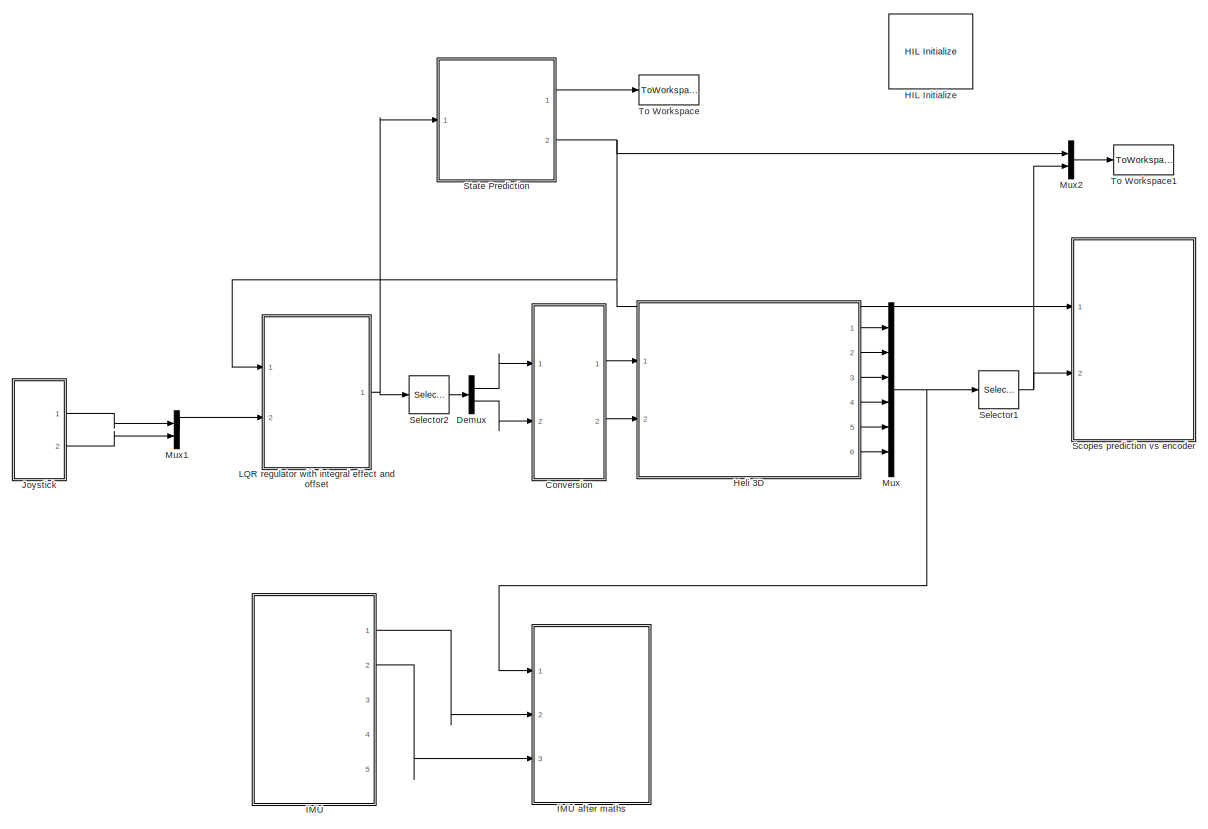
[diagram: root canvas - part 1/3, center side, full height]
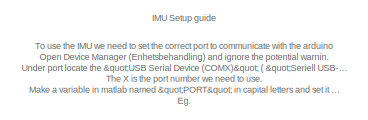
[diagram: root canvas - part 2/3, bottom left region]
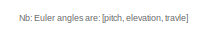
[diagram: root canvas - part 3/3, bottom right region]
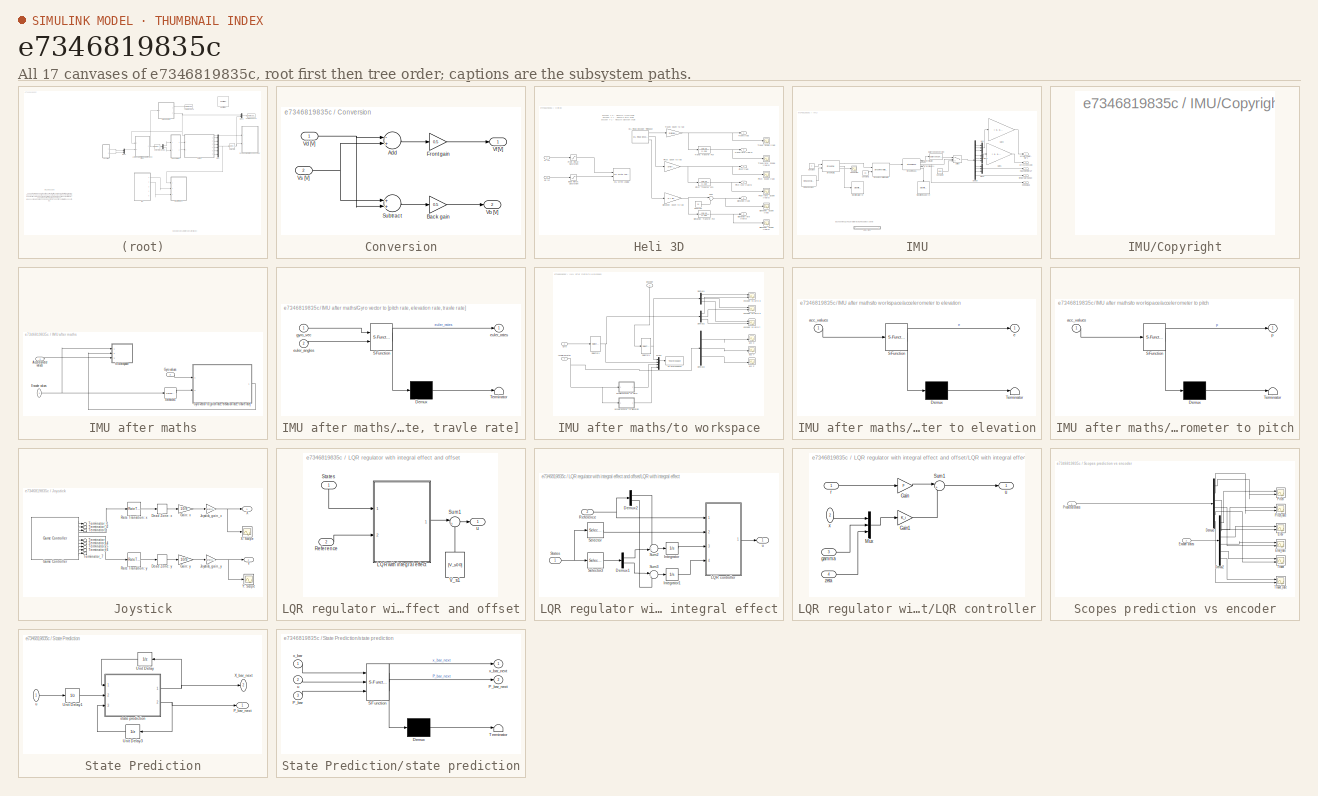
[diagram: thumbnail index - all 17 canvases of the model, root first then tree order]
MODEL slx_e7346819835c
KIND model
CONFIG AbsTol = auto
CONFIG EnableMultiTasking = on
CONFIG FixedStep = 0.002
CONFIG MaxStep = auto
CONFIG MinStep = auto
CONFIG PostLoadFcn = qc_set_target_type(getConfigSet(bdroot, 'QUARC Default Target Configuration'));
CONFIG RelTol = 1e-3
CONFIG SampleTimeConstraint = Unconstrained
CONFIG Solver = ode1
CONFIG SolverName = ode1
CONFIG StartTime = 0.0
CONFIG StopTime = inf
BLOCK [SubSystem] Conversion
  Ports = [2, 2]
  RequestExecContextInheritance = off
  Variant = off
BLOCK [Sum] Conversion/Add
  InputSameDT = off
  Inputs = -+
  OutDataTypeStr = Inherit: Inherit via internal rule
  Ports = [2, 1]
  SaturateOnIntegerOverflow = off
BLOCK [Gain] Conversion/Back gain
  Gain = 0.5
  OutDataTypeStr = Inherit: Inherit via internal rule
  ParamDataTypeStr = Inherit: Inherit via internal rule
  SaturateOnIntegerOverflow = off
BLOCK [Gain] Conversion/Front gain
  Gain = 0.5
  OutDataTypeStr = Inherit: Inherit via internal rule
  ParamDataTypeStr = Inherit: Inherit via internal rule
  SaturateOnIntegerOverflow = off
BLOCK [Sum] Conversion/Subtract
  InputSameDT = off
  OutDataTypeStr = Inherit: Inherit via internal rule
  Ports = [2, 1]
  SaturateOnIntegerOverflow = off
BLOCK [Outport] Conversion/Vb [V]
  IconDisplay = Port number
  Port = 2
BLOCK [Inport] Conversion/Vd [V]
  IconDisplay = Port number
BLOCK [Outport] Conversion/Vf [V]
  IconDisplay = Port number
BLOCK [Inport] Conversion/Vs [V]
  IconDisplay = Port number
  Port = 2
BLOCK [Demux] Demux
  DisplayOption = bar
  Outputs = 2
  Ports = [1, 2]
BLOCK [Reference] HIL Initialize  REF=quarc_library/Data Acquisition/Generic/Configuration/HIL Initialize
  AttributesFormatString = %<object_name> (%<board_type>-%<board_number>)
  Ports = []
  Priority = -99
  SourceBlock = quarc_library/Data Acquisition/Generic/Configuration/HIL Initialize
  SourceType = HIL Initialize
  UserDataPersistent = on
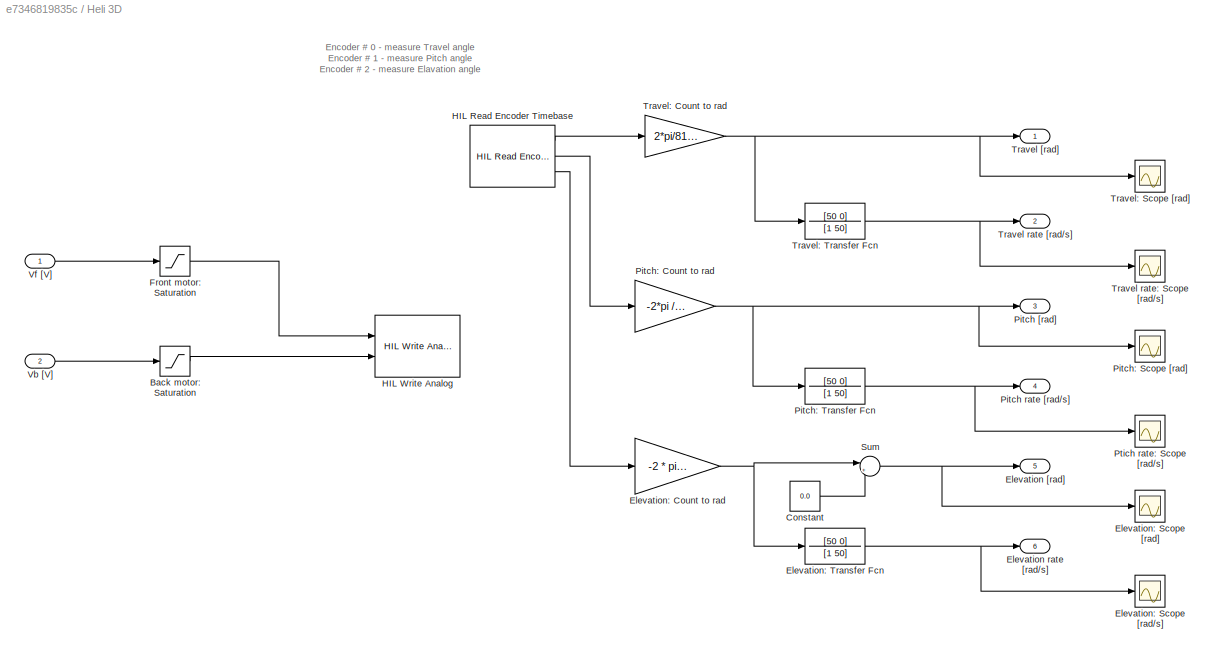
BLOCK [SubSystem] Heli 3D
  Ports = [2, 6]
  RequestExecContextInheritance = off
  Variant = off
BLOCK [Saturate] Heli 3D/Back motor: Saturation
  InputPortMap = u0
  LowerLimit = -5
  Ports = [1, 1]
  UpperLimit = 5
BLOCK [Constant] Heli 3D/Constant
  Value = 0.0
BLOCK [Outport] Heli 3D/Elevation [rad]
  IconDisplay = Port number
  Port = 5
BLOCK [Outport] Heli 3D/Elevation rate [rad//s]
  IconDisplay = Port number
  Port = 6
BLOCK [Gain] Heli 3D/Elevation: Count to rad
  Gain = -2 * pi /4096
  OutDataTypeStr = Inherit: Inherit via internal rule
  ParamDataTypeStr = Inherit: Inherit via internal rule
  SaturateOnIntegerOverflow = off
BLOCK [Scope] Heli 3D/Elevation: Scope [rad//s]
  NumInputPorts = 1
  Ports = [1]
  ScopeSpecificationString = Simulink.scopes.TimeScopeBlockCfg('CurrentConfiguration', extmgr.ConfigurationSet(extmgr.Configuration('Core','General UI',true),extmgr.Configuration('Core','Source UI',true),extmgr.Configuration('Sources','WiredSimulink',true,'DataLoggingVariableName','ScopeData13','DataLoggingSaveFormat','StructureWithTime','DataLoggingLimitDataPoints',true,'DataLoggingDecimation','1','DataLoggingDecimateData',t...<+1740ch>
BLOCK [Scope] Heli 3D/Elevation: Scope [rad]
  NumInputPorts = 1
  Ports = [1]
  ScopeSpecificationString = Simulink.scopes.TimeScopeBlockCfg('CurrentConfiguration', extmgr.ConfigurationSet(extmgr.Configuration('Core','General UI',true),extmgr.Configuration('Core','Source UI',true),extmgr.Configuration('Sources','WiredSimulink',true,'DataLoggingVariableName','ScopeData12','DataLoggingSaveFormat','StructureWithTime','DataLoggingLimitDataPoints',true,'DataLoggingDecimation','1','DataLoggingDecimateData',t...<+1720ch>
BLOCK [TransferFcn] Heli 3D/Elevation: Transfer Fcn
  Denominator = [1 50]
  Numerator = [50 0]
BLOCK [Saturate] Heli 3D/Front motor: Saturation
  InputPortMap = u0
  LowerLimit = -5
  Ports = [1, 1]
  UpperLimit = 5
BLOCK [Reference] Heli 3D/HIL Read Encoder Timebase  REF=quarc_library/Data Acquisition/Generic/Timebases/HIL Read Encoder
Timebase
  AttributesFormatString = (%<object_name>)
  Ports = [0, 3]
  SourceBlock = quarc_library/Data Acquisition/Generic/Timebases/HIL Read Encoder\nTimebase
  SourceType = HIL Read Encoder Timebase
  UserDataPersistent = on
BLOCK [Reference] Heli 3D/HIL Write Analog  REF=quarc_library/Data Acquisition/Generic/Immediate I//O/HIL Write Analog
  AttributesFormatString = (%<object_name>)
  Ports = [2]
  SourceBlock = quarc_library/Data Acquisition/Generic/Immediate I//O/HIL Write Analog
  SourceType = HIL Write Analog
  UserDataPersistent = on
BLOCK [Outport] Heli 3D/Pitch [rad]
  IconDisplay = Port number
  Port = 3
BLOCK [Outport] Heli 3D/Pitch rate [rad//s]
  IconDisplay = Port number
  Port = 4
BLOCK [Gain] Heli 3D/Pitch: Count to rad
  Gain = -2*pi /4096
  OutDataTypeStr = Inherit: Inherit via internal rule
  ParamDataTypeStr = Inherit: Inherit via internal rule
  SaturateOnIntegerOverflow = off
BLOCK [Scope] Heli 3D/Pitch: Scope [rad]
  NumInputPorts = 1
  Ports = [1]
  ScopeSpecificationString = Simulink.scopes.TimeScopeBlockCfg('CurrentConfiguration', extmgr.ConfigurationSet(extmgr.Configuration('Core','General UI',true),extmgr.Configuration('Core','Source UI',true),extmgr.Configuration('Sources','WiredSimulink',true,'DataLoggingVariableName','ScopeData10','DataLoggingSaveFormat','StructureWithTime','DataLoggingLimitDataPoints',true,'DataLoggingDecimation','1','DataLoggingDecimateData',t...<+1780ch>
BLOCK [TransferFcn] Heli 3D/Pitch: Transfer Fcn
  Denominator = [1 50]
  Numerator = [50 0]
BLOCK [Scope] Heli 3D/Ptich rate: Scope [rad//s]
  NumInputPorts = 1
  Ports = [1]
  ScopeSpecificationString = Simulink.scopes.TimeScopeBlockCfg('CurrentConfiguration', extmgr.ConfigurationSet(extmgr.Configuration('Core','General UI',true),extmgr.Configuration('Core','Source UI',true),extmgr.Configuration('Sources','WiredSimulink',true,'DataLoggingVariableName','ScopeData11','DataLoggingSaveFormat','StructureWithTime','DataLoggingLimitDataPoints',true,'DataLoggingDecimation','1','DataLoggingDecimateData',t...<+1737ch>
BLOCK [Sum] Heli 3D/Sum
  IconShape = round
  InputSameDT = off
  Inputs = |+-
  OutDataTypeStr = Inherit: Inherit via internal rule
  Ports = [2, 1]
  SaturateOnIntegerOverflow = off
BLOCK [Outport] Heli 3D/Travel [rad]
  IconDisplay = Port number
BLOCK [Outport] Heli 3D/Travel rate [rad//s]
  IconDisplay = Port number
  Port = 2
BLOCK [Scope] Heli 3D/Travel rate: Scope [rad//s]
  NumInputPorts = 1
  Ports = [1]
  ScopeSpecificationString = Simulink.scopes.TimeScopeBlockCfg('CurrentConfiguration', extmgr.ConfigurationSet(extmgr.Configuration('Core','General UI',true),extmgr.Configuration('Core','Source UI',true),extmgr.Configuration('Sources','WiredSimulink',true,'DataLoggingVariableName','ScopeData9','DataLoggingSaveFormat','StructureWithTime','DataLoggingLimitDataPoints',true,'DataLoggingDecimation','1','DataLoggingDecimateData',tr...<+1672ch>
BLOCK [Gain] Heli 3D/Travel: Count to rad
  Gain = 2*pi/8192
  OutDataTypeStr = Inherit: Inherit via internal rule
  ParamDataTypeStr = Inherit: Inherit via internal rule
  SaturateOnIntegerOverflow = off
BLOCK [Scope] Heli 3D/Travel: Scope [rad]
  NumInputPorts = 1
  Ports = [1]
  ScopeSpecificationString = Simulink.scopes.TimeScopeBlockCfg('CurrentConfiguration', extmgr.ConfigurationSet(extmgr.Configuration('Core','General UI',true),extmgr.Configuration('Core','Source UI',true),extmgr.Configuration('Sources','WiredSimulink',true,'DataLoggingVariableName','ScopeData8','DataLoggingSaveFormat','StructureWithTime','DataLoggingLimitDataPoints',true,'DataLoggingDecimation','1','DataLoggingDecimateData',tr...<+1672ch>
BLOCK [TransferFcn] Heli 3D/Travel: Transfer Fcn
  Denominator = [1 50]
  Numerator = [50 0]
BLOCK [Inport] Heli 3D/Vb [V]
  IconDisplay = Port number
  Port = 2
BLOCK [Inport] Heli 3D/Vf [V]
  IconDisplay = Port number
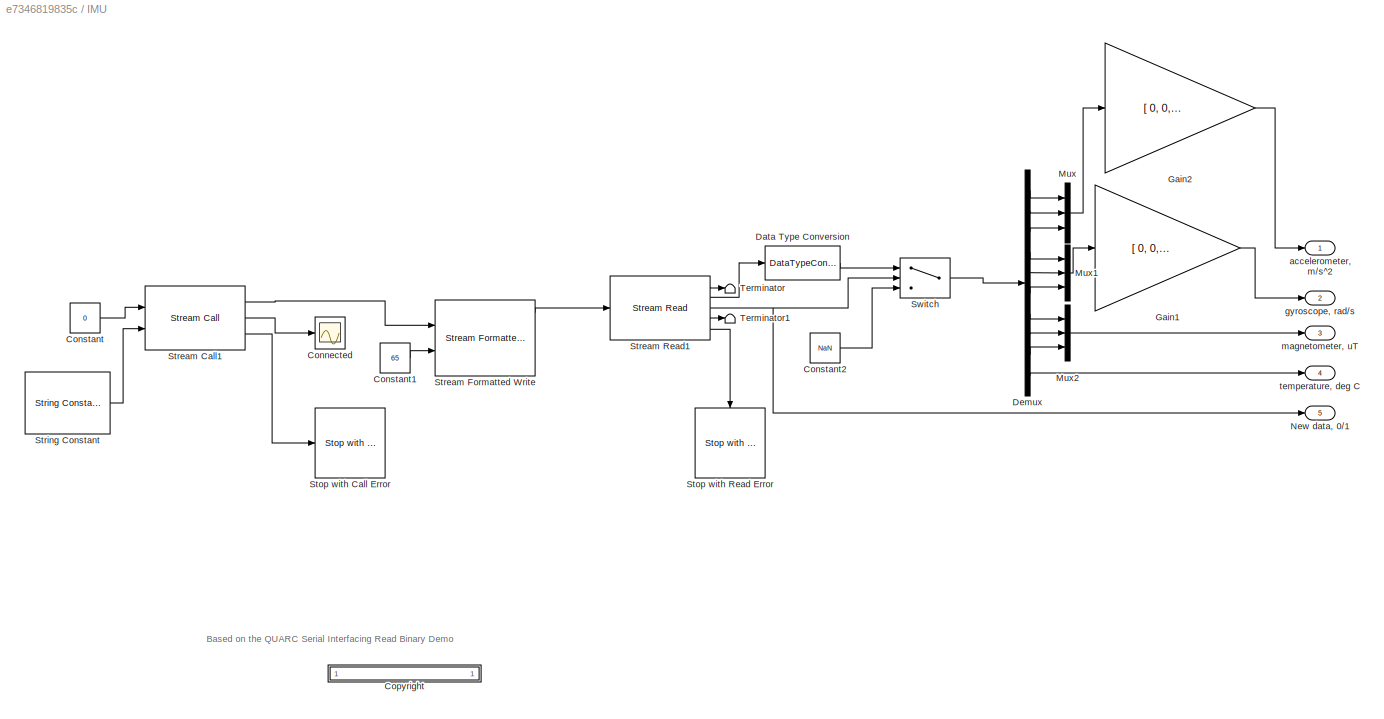
BLOCK [SubSystem] IMU
  Ports = [0, 5]
  RequestExecContextInheritance = off
  Variant = off
BLOCK [SubSystem] IMU after maths
  Ports = [3]
  RequestExecContextInheritance = off
  Variant = off
BLOCK [Inport] IMU after maths/Accelerometer values
  IconDisplay = Port number
  Port = 2
BLOCK [Inport] IMU after maths/Encoder values
  IconDisplay = Port number
BLOCK [Inport] IMU after maths/Gyro values
  IconDisplay = Port number
  Port = 3
BLOCK [SubSystem] IMU after maths/Gyro vector to [pitch rate, elevation rate, travle rate]
  ErrorFcn = Stateflow.Translate.translate
  PermitHierarchicalResolution = ExplicitOnly
  Ports = [2, 1]
  RequestExecContextInheritance = off
  SFBlockType = MATLAB Function
  TreatAsAtomicUnit = on
  Variant = off
BLOCK [Demux] IMU after maths/Gyro vector to [pitch rate, elevation rate, travle rate]/ Demux 
  Outputs = 1
  Ports = [1, 1]
BLOCK [S-Function] IMU after maths/Gyro vector to [pitch rate, elevation rate, travle rate]/ SFunction 
  EnableBusSupport = off
  FunctionName = sf_sfun
  PortCounts = [2 2]
  Ports = [2, 2]
  SFcnIsStateOwnerBlock = off
  SFunctionDeploymentMode = off
  Tag = Stateflow S-Function heli_q8_day5 2
BLOCK [Terminator] IMU after maths/Gyro vector to [pitch rate, elevation rate, travle rate]/ Terminator 
BLOCK [Inport] IMU after maths/Gyro vector to [pitch rate, elevation rate, travle rate]/euler_angles
  IconDisplay = Port number
  Port = 2
BLOCK [Outport] IMU after maths/Gyro vector to [pitch rate, elevation rate, travle rate]/euler_rates
  IconDisplay = Port number
BLOCK [Inport] IMU after maths/Gyro vector to [pitch rate, elevation rate, travle rate]/gyro_vec
  IconDisplay = Port number
BLOCK [Selector] IMU after maths/Selector4
  IndexOptions = Index vector (dialog)
  Indices = [3 5 1]
  InputPortWidth = 6
  OutputSizes = 1
  Ports = [1, 1]
BLOCK [SubSystem] IMU after maths/to workspace
  Ports = [3]
  RequestExecContextInheritance = off
  Variant = off
BLOCK [Inport] IMU after maths/to workspace/Accelerometer
  IconDisplay = Port number
  Port = 3
BLOCK [Demux] IMU after maths/to workspace/Demux1
  DisplayOption = bar
  Outputs = 3
  Ports = [1, 3]
BLOCK [Demux] IMU after maths/to workspace/Demux2
  DisplayOption = bar
  Outputs = 3
  Ports = [1, 3]
BLOCK [Demux] IMU after maths/to workspace/Demux3
  DisplayOption = bar
  Outputs = 3
  Ports = [1, 3]
BLOCK [Inport] IMU after maths/to workspace/Encoder
  IconDisplay = Port number
BLOCK [Inport] IMU after maths/to workspace/Gyro
  IconDisplay = Port number
  Port = 2
BLOCK [Mux] IMU after maths/to workspace/Mux3
  DisplayOption = bar
  Ports = [4, 1]
BLOCK [Selector] IMU after maths/to workspace/Selector1
  IndexOptions = Index vector (dialog)
  Indices = [2 1 3]
  InputPortWidth = 3
  OutputSizes = 1
  Ports = [1, 1]
BLOCK [Selector] IMU after maths/to workspace/Selector4
  IndexOptions = Index vector (dialog)
  Indices = [4 6 2]
  InputPortWidth = 6
  OutputSizes = 1
  Ports = [1, 1]
BLOCK [ToWorkspace] IMU after maths/to workspace/To Workspace1
  FixptAsFi = on
  MaxDataPoints = inf
  Ports = [1]
  SampleTime = -1
  Save2DSignal = 3-D array (concatenate along third dimension)
  SaveFormat = Structure With Time
  VariableName = ans2
BLOCK [Scope] IMU after maths/to workspace/acc X
  NumInputPorts = 2
  Ports = [2]
  ScopeSpecificationString = Simulink.scopes.TimeScopeBlockCfg('CurrentConfiguration', extmgr.ConfigurationSet(extmgr.Configuration('Core','General UI',true),extmgr.Configuration('Core','Source UI',true),extmgr.Configuration('Sources','WiredSimulink',true,'DataLoggingVariableName','ScopeData6'),extmgr.Configuration('Visuals','Time Domain',true,'SerializedDisplays',{struct('MinYLimReal','-5.66736','MaxYLimReal','0.62971','YLab...<+1409ch>
BLOCK [Scope] IMU after maths/to workspace/acc Y
  NumInputPorts = 2
  Ports = [2]
  ScopeSpecificationString = Simulink.scopes.TimeScopeBlockCfg('CurrentConfiguration', extmgr.ConfigurationSet(extmgr.Configuration('Core','General UI',true),extmgr.Configuration('Core','Source UI',true),extmgr.Configuration('Sources','WiredSimulink',true,'DataLoggingVariableName','ScopeData7'),extmgr.Configuration('Visuals','Time Domain',true,'SerializedDisplays',{struct('MinYLimReal','-0.05477','MaxYLimReal','0.49293','YLab...<+1410ch>
BLOCK [Scope] IMU after maths/to workspace/acc Z
  NumInputPorts = 2
  Ports = [2]
  ScopeSpecificationString = Simulink.scopes.TimeScopeBlockCfg('CurrentConfiguration', extmgr.ConfigurationSet(extmgr.Configuration('Core','General UI',true),extmgr.Configuration('Core','Source UI',true),extmgr.Configuration('Sources','WiredSimulink',true,'DataLoggingVariableName','ScopeData8'),extmgr.Configuration('Visuals','Time Domain',true,'SerializedDisplays',{struct('MinYLimReal','-9.71317','MaxYLimReal','1.07924','YLab...<+1411ch>
BLOCK [SubSystem] IMU after maths/to workspace/accelerometer to elevation
  ErrorFcn = Stateflow.Translate.translate
  PermitHierarchicalResolution = ExplicitOnly
  Ports = [1, 1]
  RequestExecContextInheritance = off
  SFBlockType = MATLAB Function
  TreatAsAtomicUnit = on
  Variant = off
BLOCK [Demux] IMU after maths/to workspace/accelerometer to elevation/ Demux 
  Outputs = 1
  Ports = [1, 1]
BLOCK [S-Function] IMU after maths/to workspace/accelerometer to elevation/ SFunction 
  EnableBusSupport = off
  FunctionName = sf_sfun
  PortCounts = [1 2]
  Ports = [1, 2]
  SFcnIsStateOwnerBlock = off
  SFunctionDeploymentMode = off
  Tag = Stateflow S-Function heli_q8_day5 1
BLOCK [Terminator] IMU after maths/to workspace/accelerometer to elevation/ Terminator 
BLOCK [Inport] IMU after maths/to workspace/accelerometer to elevation/acc_values
  IconDisplay = Port number
BLOCK [Outport] IMU after maths/to workspace/accelerometer to elevation/e
  IconDisplay = Port number
BLOCK [SubSystem] IMU after maths/to workspace/accelerometer to pitch
  ErrorFcn = Stateflow.Translate.translate
  PermitHierarchicalResolution = ExplicitOnly
  Ports = [1, 1]
  RequestExecContextInheritance = off
  SFBlockType = MATLAB Function
  TreatAsAtomicUnit = on
  Variant = off
BLOCK [Demux] IMU after maths/to workspace/accelerometer to pitch/ Demux 
  Outputs = 1
  Ports = [1, 1]
BLOCK [S-Function] IMU after maths/to workspace/accelerometer to pitch/ SFunction 
  EnableBusSupport = off
  FunctionName = sf_sfun
  PortCounts = [1 2]
  Ports = [1, 2]
  SFcnIsStateOwnerBlock = off
  SFunctionDeploymentMode = off
  Tag = Stateflow S-Function heli_q8_day5 3
BLOCK [Terminator] IMU after maths/to workspace/accelerometer to pitch/ Terminator 
BLOCK [Inport] IMU after maths/to workspace/accelerometer to pitch/acc_values
  IconDisplay = Port number
BLOCK [Outport] IMU after maths/to workspace/accelerometer to pitch/p
  IconDisplay = Port number
BLOCK [Scope] IMU after maths/to workspace/encoder vs gyro e
  NumInputPorts = 2
  Ports = [2]
  ScopeSpecificationString = Simulink.scopes.TimeScopeBlockCfg('CurrentConfiguration', extmgr.ConfigurationSet(extmgr.Configuration('Core','General UI',true),extmgr.Configuration('Core','Source UI',true),extmgr.Configuration('Sources','WiredSimulink',true,'DataLoggingVariableName','ScopeData4'),extmgr.Configuration('Visuals','Time Domain',true,'SerializedDisplays',{struct('MinYLimReal','-0.05071','MaxYLimReal','0.00563','YLab...<+1433ch>
BLOCK [Scope] IMU after maths/to workspace/encoder vs gyro p
  NumInputPorts = 2
  Ports = [2]
  ScopeSpecificationString = Simulink.scopes.TimeScopeBlockCfg('CurrentConfiguration', extmgr.ConfigurationSet(extmgr.Configuration('Core','General UI',true),extmgr.Configuration('Core','Source UI',true),extmgr.Configuration('Sources','WiredSimulink',true,'DataLoggingVariableName','ScopeData3'),extmgr.Configuration('Visuals','Time Domain',true,'SerializedDisplays',{struct('MinYLimReal','-0.0516','MaxYLimReal','0.00573','YLabe...<+1430ch>
BLOCK [Scope] IMU after maths/to workspace/encoder vs gyro t
  NumInputPorts = 2
  Ports = [2]
  ScopeSpecificationString = Simulink.scopes.TimeScopeBlockCfg('CurrentConfiguration', extmgr.ConfigurationSet(extmgr.Configuration('Core','General UI',true),extmgr.Configuration('Core','Source UI',true),extmgr.Configuration('Sources','WiredSimulink',true,'DataLoggingVariableName','ScopeData5'),extmgr.Configuration('Visuals','Time Domain',true,'SerializedDisplays',{struct('MinYLimReal','-0.19091','MaxYLimReal','0.02121','YLab...<+1436ch>
BLOCK [Scope] IMU/Connected
  NumInputPorts = 1
  Ports = [1]
  ScopeSpecificationString = Simulink.scopes.TimeScopeBlockCfg('CurrentConfiguration', extmgr.ConfigurationSet(extmgr.Configuration('Core','General UI',true),extmgr.Configuration('Core','Source UI',true),extmgr.Configuration('Sources','WiredSimulink',true,'DataLoggingLimitDataPoints',true,'DataLoggingSaveFormat','Array','DataLoggingDecimation','1','DataLoggingDecimateData',true),extmgr.Configuration('Visuals','Time Domain',tr...<+153ch>
BLOCK [Constant] IMU/Constant
  Value = 0
BLOCK [Constant] IMU/Constant1
  Value = 65
BLOCK [Constant] IMU/Constant2
  Value = NaN
BLOCK [SubSystem] IMU/<copyright redacted>
  OpenFcn = web('http://www.quanser.com/');
  Permissions = NoReadOrWrite
  PermitHierarchicalResolution = None
  Ports = []
  RequestExecContextInheritance = off
  Variant = off
BLOCK [DataTypeConversion] IMU/Data Type Conversion
  OutDataTypeStr = double
  RndMeth = Floor
  SaturateOnIntegerOverflow = off
BLOCK [Demux] IMU/Demux
  DisplayOption = bar
  Outputs = 10
  Ports = [1, 10]
BLOCK [Gain] IMU/Gain1
  Gain = [ 0, 0, 1; 0, 1, 0; -1, 0, 0]
  Multiplication = Matrix(K*u) (u vector)
  OutDataTypeStr = Inherit: Inherit via internal rule
  ParamDataTypeStr = Inherit: Inherit via internal rule
  SaturateOnIntegerOverflow = off
BLOCK [Gain] IMU/Gain2
  Gain = [ 0, 0, 1; 0, 1, 0; -1, 0, 0]
  Multiplication = Matrix(K*u) (u vector)
  OutDataTypeStr = Inherit: Inherit via internal rule
  ParamDataTypeStr = Inherit: Inherit via internal rule
  SaturateOnIntegerOverflow = off
BLOCK [Mux] IMU/Mux
  DisplayOption = bar
  Inputs = 3
  Ports = [3, 1]
BLOCK [Mux] IMU/Mux1
  DisplayOption = bar
  Inputs = 3
  Ports = [3, 1]
BLOCK [Mux] IMU/Mux2
  DisplayOption = bar
  Inputs = 3
  Ports = [3, 1]
BLOCK [Outport] IMU/New data, 0//1
  IconDisplay = Port number
  Port = 5
BLOCK [Reference] IMU/Stop with Call Error  REF=quarc_library/Sinks/Error Handling/Stop with Error
  Ports = [1]
  SourceBlock = quarc_library/Sinks/Error Handling/Stop with Error
  SourceType = Stop with Error
BLOCK [Reference] IMU/Stop with Read Error  REF=quarc_library/Sinks/Error Handling/Stop with Error
  Ports = [1]
  SourceBlock = quarc_library/Sinks/Error Handling/Stop with Error
  SourceType = Stop with Error
BLOCK [Reference] IMU/Stream Call1  REF=quarc_library/Communications/Intermediate/Stream Call
  Ports = [2, 3]
  SourceBlock = quarc_library/Communications/Intermediate/Stream Call
  SourceType = Stream Call
BLOCK [Reference] IMU/Stream Formatted Write  REF=quarc_library/Communications/Intermediate/Stream Formatted
Write
  Ports = [2, 5]
  SourceBlock = quarc_library/Communications/Intermediate/Stream Formatted\nWrite
  SourceType = Stream Formatted Write
BLOCK [Reference] IMU/Stream Read1  REF=quarc_library/Communications/Intermediate/Stream Read
  Ports = [1, 5]
  SourceBlock = quarc_library/Communications/Intermediate/Stream Read
  SourceType = Stream Read
BLOCK [Reference] IMU/String Constant  REF=quarc_library/Strings/String Constant
  AttributesFormatString = "serial://IMU:12?baud=115200,word=8,parity=none,stop=1"
  Ports = [0, 1]
  SourceBlock = quarc_library/Strings/String Constant
  SourceType = String Constant
BLOCK [Switch] IMU/Switch
  Criteria = u2 > Threshold
  InputSameDT = off
  SaturateOnIntegerOverflow = off
BLOCK [Terminator] IMU/Terminator
BLOCK [Terminator] IMU/Terminator1
BLOCK [Outport] IMU/accelerometer, m//s^2
  IconDisplay = Port number
BLOCK [Outport] IMU/gyroscope, rad//s
  IconDisplay = Port number
  Port = 2
BLOCK [Outport] IMU/magnetometer, uT
  IconDisplay = Port number
  Port = 3
BLOCK [Outport] IMU/temperature, deg C
  IconDisplay = Port number
  Port = 4
BLOCK [SubSystem] Joystick
  Ports = [0, 2]
  RequestExecContextInheritance = off
  Variant = off
BLOCK [DeadZone] Joystick/Dead Zone: x
  LowerValue = -0.1
  UpperValue = 0.1
BLOCK [DeadZone] Joystick/Dead Zone: y
  LowerValue = -0.1
  UpperValue = 0.1
BLOCK [Gain] Joystick/Gain: x
  Gain = 10/9
  OutDataTypeStr = Inherit: Inherit via internal rule
  ParamDataTypeStr = Inherit: Inherit via internal rule
  SaturateOnIntegerOverflow = off
BLOCK [Gain] Joystick/Gain: y
  Gain = 10/9
  OutDataTypeStr = Inherit: Inherit via internal rule
  ParamDataTypeStr = Inherit: Inherit via internal rule
  SaturateOnIntegerOverflow = off
BLOCK [Reference] Joystick/Game Controller  REF=quarc_library/Devices/Peripherals/Target/Game Controller
  Ports = [0, 10]
  SourceBlock = quarc_library/Devices/Peripherals/Target/Game Controller
  SourceType = Game Controller
BLOCK [Gain] Joystick/Joystick_gain_x
  Gain = Joystick_gain_x
  OutDataTypeStr = Inherit: Inherit via internal rule
  ParamDataTypeStr = Inherit: Inherit via internal rule
  SaturateOnIntegerOverflow = off
BLOCK [Gain] Joystick/Joystick_gain_y
  Gain = Joystick_gain_y
  OutDataTypeStr = Inherit: Inherit via internal rule
  ParamDataTypeStr = Inherit: Inherit via internal rule
  SaturateOnIntegerOverflow = off
BLOCK [RateTransition] Joystick/Rate Transition: x
BLOCK [RateTransition] Joystick/Rate Transition: y
BLOCK [Terminator] Joystick/Terminator
BLOCK [Terminator] Joystick/Terminator1
BLOCK [Terminator] Joystick/Terminator_1
BLOCK [Terminator] Joystick/Terminator_2
BLOCK [Terminator] Joystick/Terminator_4
BLOCK [Terminator] Joystick/Terminator_5
BLOCK [Terminator] Joystick/Terminator_6
BLOCK [Terminator] Joystick/Terminator_7
BLOCK [Outport] Joystick/X
  IconDisplay = Port number
BLOCK [Scope] Joystick/X: Scope
  NumInputPorts = 1
  Ports = [1]
  ScopeSpecificationString = Simulink.scopes.TimeScopeBlockCfg('CurrentConfiguration', extmgr.ConfigurationSet(extmgr.Configuration('Core','General UI',true),extmgr.Configuration('Core','Source UI',true),extmgr.Configuration('Sources','WiredSimulink',true,'DataLoggingLimitDataPoints',true,'DataLoggingSaveFormat','Array','DataLoggingDecimation','1','DataLoggingDecimateData',true),extmgr.Configuration('Visuals','Time Domain',tr...<+155ch>
BLOCK [Outport] Joystick/Y
  IconDisplay = Port number
  Port = 2
BLOCK [Scope] Joystick/Y: Scope
  NumInputPorts = 1
  Ports = [1]
  ScopeSpecificationString = Simulink.scopes.TimeScopeBlockCfg('CurrentConfiguration', extmgr.ConfigurationSet(extmgr.Configuration('Core','General UI',true),extmgr.Configuration('Core','Source UI',true),extmgr.Configuration('Sources','WiredSimulink',true,'DataLoggingLimitDataPoints',true,'DataLoggingSaveFormat','Array','DataLoggingDecimation','1','DataLoggingDecimateData',true),extmgr.Configuration('Visuals','Time Domain',tr...<+156ch>
BLOCK [SubSystem] LQR regulator with integral effect and offset
  Ports = [2, 1]
  RequestExecContextInheritance = off
  Variant = off
BLOCK [SubSystem] LQR regulator with integral effect and offset/LQR with integral effect
  Ports = [2, 1]
  RequestExecContextInheritance = off
  Variant = off
BLOCK [Demux] LQR regulator with integral effect and offset/LQR with integral effect/Demux1
  DisplayOption = bar
  Outputs = 2
  Ports = [1, 2]
BLOCK [Demux] LQR regulator with integral effect and offset/LQR with integral effect/Demux2
  DisplayOption = bar
  Outputs = 2
  Ports = [1, 2]
BLOCK [Integrator] LQR regulator with integral effect and offset/LQR with integral effect/Integrator
  Ports = [1, 1]
BLOCK [Integrator] LQR regulator with integral effect and offset/LQR with integral effect/Integrator1
  Ports = [1, 1]
BLOCK [SubSystem] LQR regulator with integral effect and offset/LQR with integral effect/LQR controller
  Ports = [4, 1]
  RequestExecContextInheritance = off
  Variant = off
BLOCK [Gain] LQR regulator with integral effect and offset/LQR with integral effect/LQR controller/Gain
  Gain = F
  Multiplication = Matrix(K*u) (u vector)
  OutDataTypeStr = Inherit: Inherit via internal rule
  ParamDataTypeStr = Inherit: Inherit via internal rule
  SaturateOnIntegerOverflow = off
BLOCK [Gain] LQR regulator with integral effect and offset/LQR with integral effect/LQR controller/Gain1
  Gain = K_i
  Multiplication = Matrix(K*u) (u vector)
  OutDataTypeStr = Inherit: Inherit via internal rule
  ParamDataTypeStr = Inherit: Inherit via internal rule
  SaturateOnIntegerOverflow = off
BLOCK [Mux] LQR regulator with integral effect and offset/LQR with integral effect/LQR controller/Mux
  DisplayOption = bar
  Inputs = 3
  Ports = [3, 1]
BLOCK [Sum] LQR regulator with integral effect and offset/LQR with integral effect/LQR controller/Sum1
  IconShape = round
  InputSameDT = off
  Inputs = |+-
  OutDataTypeStr = Inherit: Inherit via internal rule
  Ports = [2, 1]
  SaturateOnIntegerOverflow = off
BLOCK [Inport] LQR regulator with integral effect and offset/LQR with integral effect/LQR controller/gamma
  IconDisplay = Port number
  Port = 3
BLOCK [Inport] LQR regulator with integral effect and offset/LQR with integral effect/LQR controller/r
  IconDisplay = Port number
BLOCK [Outport] LQR regulator with integral effect and offset/LQR with integral effect/LQR controller/u
  IconDisplay = Port number
BLOCK [Inport] LQR regulator with integral effect and offset/LQR with integral effect/LQR controller/x
  IconDisplay = Port number
  Port = 2
BLOCK [Inport] LQR regulator with integral effect and offset/LQR with integral effect/LQR controller/zeta
  IconDisplay = Port number
  Port = 4
BLOCK [Inport] LQR regulator with integral effect and offset/LQR with integral effect/Reference
  IconDisplay = Port number
  Port = 2
BLOCK [Selector] LQR regulator with integral effect and offset/LQR with integral effect/Selector
  IndexOptions = Index vector (dialog)
  Indices = [1 2 4]
  InputPortWidth = 6
  OutputSizes = 1
  Ports = [1, 1]
BLOCK [Selector] LQR regulator with integral effect and offset/LQR with integral effect/Selector3
  IndexOptions = Index vector (dialog)
  Indices = [1 4]
  InputPortWidth = 6
  OutputSizes = 1
  Ports = [1, 1]
BLOCK [Inport] LQR regulator with integral effect and offset/LQR with integral effect/States
  IconDisplay = Port number
BLOCK [Sum] LQR regulator with integral effect and offset/LQR with integral effect/Sum2
  IconShape = round
  InputSameDT = off
  Inputs = -+|
  OutDataTypeStr = Inherit: Inherit via internal rule
  Ports = [2, 1]
  SaturateOnIntegerOverflow = off
BLOCK [Sum] LQR regulator with integral effect and offset/LQR with integral effect/Sum3
  IconShape = round
  InputSameDT = off
  Inputs = |+-
  OutDataTypeStr = Inherit: Inherit via internal rule
  Ports = [2, 1]
  SaturateOnIntegerOverflow = off
BLOCK [Outport] LQR regulator with integral effect and offset/LQR with integral effect/u
  IconDisplay = Port number
BLOCK [Inport] LQR regulator with integral effect and offset/Reference
  IconDisplay = Port number
  Port = 2
BLOCK [Inport] LQR regulator with integral effect and offset/States
  IconDisplay = Port number
BLOCK [Sum] LQR regulator with integral effect and offset/Sum1
  IconShape = round
  InputSameDT = off
  Inputs = |++
  OutDataTypeStr = Inherit: Inherit via internal rule
  Ports = [2, 1]
  SaturateOnIntegerOverflow = off
BLOCK [Constant] LQR regulator with integral effect and offset/V_s1
  Value = [V_s0 0]
BLOCK [Outport] LQR regulator with integral effect and offset/u
  IconDisplay = Port number
BLOCK [Mux] Mux
  DisplayOption = bar
  Inputs = 6
  Ports = [6, 1]
BLOCK [Mux] Mux1
  DisplayOption = bar
  Inputs = 2
  Ports = [2, 1]
BLOCK [Mux] Mux2
  DisplayOption = bar
  Inputs = 2
  Ports = [2, 1]
BLOCK [SubSystem] Scopes prediction vs encoder
  Ports = [2]
  RequestExecContextInheritance = off
  Variant = off
BLOCK [Demux] Scopes prediction vs encoder/Demux2
  DisplayOption = bar
  Outputs = 6
  Ports = [1, 6]
BLOCK [Demux] Scopes prediction vs encoder/Demux3
  DisplayOption = bar
  Outputs = 6
  Ports = [1, 6]
BLOCK [Scope] Scopes prediction vs encoder/Elev
  NumInputPorts = 2
  Ports = [2]
  ScopeSpecificationString = Simulink.scopes.TimeScopeBlockCfg('CurrentConfiguration', extmgr.ConfigurationSet(extmgr.Configuration('Core','General UI',true),extmgr.Configuration('Core','Source UI',true),extmgr.Configuration('Sources','WiredSimulink',true,'DataLoggingVariableName','ScopeData3'),extmgr.Configuration('Visuals','Time Domain',true,'SerializedDisplays',{struct('MinYLimReal','-0.16527','MaxYLimReal','1.48741','YLab...<+1388ch>
BLOCK [Scope] Scopes prediction vs encoder/Elev_rate
  NumInputPorts = 2
  Ports = [2]
  ScopeSpecificationString = Simulink.scopes.TimeScopeBlockCfg('CurrentConfiguration', extmgr.ConfigurationSet(extmgr.Configuration('Core','General UI',true),extmgr.Configuration('Core','Source UI',true),extmgr.Configuration('Sources','WiredSimulink',true,'DataLoggingVariableName','ScopeData4'),extmgr.Configuration('Visuals','Time Domain',true,'SerializedDisplays',{struct('MinYLimReal','-0.04143','MaxYLimReal','0.3729','YLabe...<+1383ch>
BLOCK [Inport] Scopes prediction vs encoder/Encoder states
  IconDisplay = Port number
  Port = 2
BLOCK [Scope] Scopes prediction vs encoder/Pitch
  NumInputPorts = 2
  Ports = [2]
  ScopeSpecificationString = Simulink.scopes.TimeScopeBlockCfg('CurrentConfiguration', extmgr.ConfigurationSet(extmgr.Configuration('Core','General UI',true),extmgr.Configuration('Core','Source UI',true),extmgr.Configuration('Sources','WiredSimulink',true,'DataLoggingVariableName','ScopeData1'),extmgr.Configuration('Visuals','Time Domain',true,'SerializedDisplays',{struct('MinYLimReal','-0.00000000000000002','MaxYLimReal','0....<+1483ch>
BLOCK [Scope] Scopes prediction vs encoder/Pitch_rate
  NumInputPorts = 2
  Ports = [2]
  ScopeSpecificationString = Simulink.scopes.TimeScopeBlockCfg('CurrentConfiguration', extmgr.ConfigurationSet(extmgr.Configuration('Core','General UI',true),extmgr.Configuration('Core','Source UI',true),extmgr.Configuration('Sources','WiredSimulink',true,'DataLoggingVariableName','ScopeData2'),extmgr.Configuration('Visuals','Time Domain',true,'SerializedDisplays',{struct('MinYLimReal','-0.000000000000000029','MaxYLimReal','0...<+1490ch>
BLOCK [Inport] Scopes prediction vs encoder/Predicted states
  IconDisplay = Port number
BLOCK [Scope] Scopes prediction vs encoder/Travel
  NumInputPorts = 2
  Ports = [2]
  ScopeSpecificationString = Simulink.scopes.TimeScopeBlockCfg('CurrentConfiguration', extmgr.ConfigurationSet(extmgr.Configuration('Core','General UI',true),extmgr.Configuration('Core','Source UI',true),extmgr.Configuration('Sources','WiredSimulink',true,'DataLoggingVariableName','ScopeData5'),extmgr.Configuration('Visuals','Time Domain',true,'SerializedDisplays',{struct('MinYLimReal','-0.00000000000000009','MaxYLimReal','0....<+1485ch>
BLOCK [Scope] Scopes prediction vs encoder/Travel_rate
  NumInputPorts = 2
  Ports = [2]
  ScopeSpecificationString = Simulink.scopes.TimeScopeBlockCfg('CurrentConfiguration', extmgr.ConfigurationSet(extmgr.Configuration('Core','General UI',true),extmgr.Configuration('Core','Source UI',true),extmgr.Configuration('Sources','WiredSimulink',true,'DataLoggingVariableName','ScopeData6'),extmgr.Configuration('Visuals','Time Domain',true,'SerializedDisplays',{struct('MinYLimReal','-0.00000000000000004','MaxYLimReal','0....<+1484ch>
BLOCK [Selector] Selector1
  IndexOptions = Index vector (dialog)
  Indices = [3 4 5 6 1 2]
  InputPortWidth = 6
  OutputSizes = 1
  Ports = [1, 1]
BLOCK [Selector] Selector2
  IndexOptions = Index vector (dialog)
  Indices = [2 1]
  InputPortWidth = 2
  OutputSizes = 1
  Ports = [1, 1]
BLOCK [SubSystem] State Prediction
  Ports = [1, 2]
  RequestExecContextInheritance = off
  Variant = off
BLOCK [Outport] State Prediction/P_bar_next
  IconDisplay = Port number
BLOCK [UnitDelay] State Prediction/Unit Delay
  InitialCondition = [0 0 0 0 0 0]
  InputProcessing = Elements as channels (sample based)
  SampleTime = T
BLOCK [UnitDelay] State Prediction/Unit Delay1
  InitialCondition = [V_s0 0]
  InputProcessing = Elements as channels (sample based)
  SampleTime = T
BLOCK [UnitDelay] State Prediction/Unit Delay3
  InitialCondition = [2.1483 -0.0145 0.0329 0.0430 0.0001 0.0189;\n-0.0145 0.3316 -0.0217 -0.0102 0.0000 0.0037;\n0.0329 -0.0217 3.7470 -0.0001 -0.0001 -0.0186;\n0.0430 -0.0102 -0.0001 0.5113 -0.0001 -0.0144;\n0.0001 0.0000 -0.0001 -0.0001 15.7303 0.0021; 0.0189 0.0037 -0.0186 -0.0144 0.0021 1.1664]
  InputProcessing = Elements as channels (sample based)
  SampleTime = T
BLOCK [Outport] State Prediction/X_bar_next
  IconDisplay = Port number
  Port = 2
BLOCK [SubSystem] State Prediction/state prediction
  ErrorFcn = Stateflow.Translate.translate
  PermitHierarchicalResolution = ExplicitOnly
  Ports = [3, 2]
  RequestExecContextInheritance = off
  SFBlockType = MATLAB Function
  TreatAsAtomicUnit = on
  Variant = off
BLOCK [Demux] State Prediction/state prediction/ Demux 
  Outputs = 1
  Ports = [1, 1]
BLOCK [S-Function] State Prediction/state prediction/ SFunction 
  EnableBusSupport = off
  FunctionName = sf_sfun
  Parameters = Q_d
  PortCounts = [3 3]
  Ports = [3, 3]
  SFcnIsStateOwnerBlock = off
  SFunctionDeploymentMode = off
  Tag = Stateflow S-Function heli_q8_day5 4
BLOCK [Terminator] State Prediction/state prediction/ Terminator 
BLOCK [Inport] State Prediction/state prediction/P_bar
  IconDisplay = Port number
  Port = 3
BLOCK [Outport] State Prediction/state prediction/P_bar_next
  IconDisplay = Port number
  Port = 2
BLOCK [Inport] State Prediction/state prediction/u
  IconDisplay = Port number
  Port = 2
BLOCK [Inport] State Prediction/state prediction/x_bar
  IconDisplay = Port number
BLOCK [Outport] State Prediction/state prediction/x_bar_next
  IconDisplay = Port number
BLOCK [Inport] State Prediction/u
  IconDisplay = Port number
BLOCK [ToWorkspace] To Workspace
  FixptAsFi = on
  MaxDataPoints = inf
  Ports = [1]
  SampleTime = -1
  Save2DSignal = 3-D array (concatenate along third dimension)
  SaveFormat = Structure With Time
  VariableName = P_next
BLOCK [ToWorkspace] To Workspace1
  FixptAsFi = on
  MaxDataPoints = inf
  Ports = [1]
  SampleTime = -1
  Save2DSignal = 3-D array (concatenate along third dimension)
  SaveFormat = Structure With Time
  VariableName = Values_day5
ANNOTATION (root): To use the IMU we need to set the correct port to communicate with the arduino Open Device Manager (Enhetsbehandling) and ignore the potential warnin. Under port locate the "USB Serial Device (COMX)" ( "Seriell USB-enhet (COMX)") The X is the port number we need to use. Make a variable in matlab named "PORT" in capital letters and set it equal the port number. Eg. PORT = 9;
ANNOTATION (root): IMU Setup guide
ANNOTATION (root): Nb: Euler angles are: [pitch, elevation, travle]
ANNOTATION Heli 3D: Encoder # 0 - measure Travel angle Encoder # 1 - measure Pitch angle Encoder # 2 - measure Elavation angle
ANNOTATION IMU: Based on the QUARC Serial Interfacing Read Binary Demo
LINE Conversion/Add:1 -> Conversion/Front gain:1
LINE Conversion/Back gain:1 -> Conversion/Vb [V]:1
LINE Conversion/Front gain:1 -> Conversion/Vf [V]:1
LINE Conversion/Subtract:1 -> Conversion/Back gain:1
NET Conversion/Vd [V]:1 -> Conversion/Add:1, Conversion/Subtract:2
NET Conversion/Vs [V]:1 -> Conversion/Add:2, Conversion/Subtract:1
LINE Conversion:1 -> Heli 3D:1
LINE Conversion:2 -> Heli 3D:2
LINE Demux:1 -> Conversion:1
LINE Demux:2 -> Conversion:2
LINE Heli 3D/Back motor: Saturation:1 -> Heli 3D/HIL Write Analog:2
LINE Heli 3D/Constant:1 -> Heli 3D/Sum:2
NET Heli 3D/Elevation: Count to rad:1 -> Heli 3D/Elevation: Transfer Fcn:1, Heli 3D/Sum:1
NET Heli 3D/Elevation: Transfer Fcn:1 -> Heli 3D/Elevation rate [rad//s]:1, Heli 3D/Elevation: Scope [rad//s]:1
LINE Heli 3D/Front motor: Saturation:1 -> Heli 3D/HIL Write Analog:1
LINE Heli 3D/HIL Read Encoder Timebase:1 -> Heli 3D/Travel: Count to rad:1
LINE Heli 3D/HIL Read Encoder Timebase:2 -> Heli 3D/Pitch: Count to rad:1
LINE Heli 3D/HIL Read Encoder Timebase:3 -> Heli 3D/Elevation: Count to rad:1
NET Heli 3D/Pitch: Count to rad:1 -> Heli 3D/Pitch [rad]:1, Heli 3D/Pitch: Scope [rad]:1, Heli 3D/Pitch: Transfer Fcn:1
NET Heli 3D/Pitch: Transfer Fcn:1 -> Heli 3D/Pitch rate [rad//s]:1, Heli 3D/Ptich rate: Scope [rad//s]:1
NET Heli 3D/Sum:1 -> Heli 3D/Elevation [rad]:1, Heli 3D/Elevation: Scope [rad]:1
NET Heli 3D/Travel: Count to rad:1 -> Heli 3D/Travel [rad]:1, Heli 3D/Travel: Scope [rad]:1, Heli 3D/Travel: Transfer Fcn:1
NET Heli 3D/Travel: Transfer Fcn:1 -> Heli 3D/Travel rate [rad//s]:1, Heli 3D/Travel rate: Scope [rad//s]:1
LINE Heli 3D/Vb [V]:1 -> Heli 3D/Back motor: Saturation:1
LINE Heli 3D/Vf [V]:1 -> Heli 3D/Front motor: Saturation:1
LINE Heli 3D:1 -> Mux:1
LINE Heli 3D:2 -> Mux:2
LINE Heli 3D:3 -> Mux:3
LINE Heli 3D:4 -> Mux:4
LINE Heli 3D:5 -> Mux:5
LINE Heli 3D:6 -> Mux:6
LINE IMU after maths/Accelerometer values:1 -> IMU after maths/to workspace:3
NET IMU after maths/Encoder values:1 -> IMU after maths/Selector4:1, IMU after maths/to workspace:1
LINE IMU after maths/Gyro values:1 -> IMU after maths/Gyro vector to [pitch rate, elevation rate, travle rate]:1
LINE IMU after maths/Gyro vector to [pitch rate, elevation rate, travle rate]:1 -> IMU after maths/to workspace:2
LINE IMU after maths/Selector4:1 -> IMU after maths/Gyro vector to [pitch rate, elevation rate, travle rate]:2
NET IMU after maths/to workspace/Accelerometer:1 -> IMU after maths/to workspace/Demux3:1, IMU after maths/to workspace/accelerometer to elevation:1, IMU after maths/to workspace/accelerometer to pitch:1
LINE IMU after maths/to workspace/Demux1:1 -> IMU after maths/to workspace/encoder vs gyro p:1
LINE IMU after maths/to workspace/Demux1:2 -> IMU after maths/to workspace/encoder vs gyro e:1
LINE IMU after maths/to workspace/Demux1:3 -> IMU after maths/to workspace/encoder vs gyro t:1
LINE IMU after maths/to workspace/Demux2:1 -> IMU after maths/to workspace/encoder vs gyro p:2
LINE IMU after maths/to workspace/Demux2:2 -> IMU after maths/to workspace/encoder vs gyro e:2
LINE IMU after maths/to workspace/Demux2:3 -> IMU after maths/to workspace/encoder vs gyro t:2
LINE IMU after maths/to workspace/Demux3:1 -> IMU after maths/to workspace/acc X:2
LINE IMU after maths/to workspace/Demux3:2 -> IMU after maths/to workspace/acc Y:2
LINE IMU after maths/to workspace/Demux3:3 -> IMU after maths/to workspace/acc Z:2
LINE IMU after maths/to workspace/Encoder:1 -> IMU after maths/to workspace/Selector4:1
LINE IMU after maths/to workspace/Gyro:1 -> IMU after maths/to workspace/Selector1:1
LINE IMU after maths/to workspace/Mux3:1 -> IMU after maths/to workspace/To Workspace1:1
NET IMU after maths/to workspace/Selector1:1 -> IMU after maths/to workspace/Demux2:1, IMU after maths/to workspace/Mux3:2
NET IMU after maths/to workspace/Selector4:1 -> IMU after maths/to workspace/Demux1:1, IMU after maths/to workspace/Mux3:1
LINE IMU after maths/to workspace/accelerometer to elevation:1 -> IMU after maths/to workspace/Mux3:4
LINE IMU after maths/to workspace/accelerometer to pitch:1 -> IMU after maths/to workspace/Mux3:3
LINE IMU/Constant1:1 -> IMU/Stream Formatted Write:2
LINE IMU/Constant2:1 -> IMU/Switch:3
LINE IMU/Constant:1 -> IMU/Stream Call1:1
LINE IMU/Data Type Conversion:1 -> IMU/Switch:1
LINE IMU/Demux:1 -> IMU/Mux:1
LINE IMU/Demux:10 -> IMU/temperature, deg C:1
LINE IMU/Demux:2 -> IMU/Mux:2
LINE IMU/Demux:3 -> IMU/Mux:3
LINE IMU/Demux:4 -> IMU/Mux1:1
LINE IMU/Demux:5 -> IMU/Mux1:2
LINE IMU/Demux:6 -> IMU/Mux1:3
LINE IMU/Demux:7 -> IMU/Mux2:1
LINE IMU/Demux:8 -> IMU/Mux2:2
LINE IMU/Demux:9 -> IMU/Mux2:3
LINE IMU/Gain1:1 -> IMU/gyroscope, rad//s:1
LINE IMU/Gain2:1 -> IMU/accelerometer, m//s^2:1
LINE IMU/Mux1:1 -> IMU/Gain1:1
LINE IMU/Mux2:1 -> IMU/magnetometer, uT:1
LINE IMU/Mux:1 -> IMU/Gain2:1
LINE IMU/Stream Call1:1 -> IMU/Stream Formatted Write:1
LINE IMU/Stream Call1:2 -> IMU/Connected:1
LINE IMU/Stream Call1:3 -> IMU/Stop with Call Error:1
LINE IMU/Stream Formatted Write:1 -> IMU/Stream Read1:1
LINE IMU/Stream Read1:1 -> IMU/Terminator:1
LINE IMU/Stream Read1:2 -> IMU/Data Type Conversion:1
NET IMU/Stream Read1:3 -> IMU/New data, 0//1:1, IMU/Switch:2
LINE IMU/Stream Read1:4 -> IMU/Terminator1:1
LINE IMU/Stream Read1:5 -> IMU/Stop with Read Error:1
LINE IMU/String Constant:1 -> IMU/Stream Call1:2
LINE IMU/Switch:1 -> IMU/Demux:1
LINE IMU:1 -> IMU after maths:2
LINE IMU:2 -> IMU after maths:3
LINE Joystick/Dead Zone: x:1 -> Joystick/Gain: x:1
LINE Joystick/Dead Zone: y:1 -> Joystick/Gain: y:1
LINE Joystick/Gain: x:1 -> Joystick/Joystick_gain_x:1
LINE Joystick/Gain: y:1 -> Joystick/Joystick_gain_y:1
LINE Joystick/Game Controller:1 -> Joystick/Terminator_1:1
LINE Joystick/Game Controller:10 -> Joystick/Terminator_7:1
LINE Joystick/Game Controller:2 -> Joystick/Terminator_2:1
LINE Joystick/Game Controller:3 -> Joystick/Terminator1:1
LINE Joystick/Game Controller:4 -> Joystick/Rate Transition: x:1
LINE Joystick/Game Controller:5 -> Joystick/Rate Transition: y:1
LINE Joystick/Game Controller:6 -> Joystick/Terminator:1
LINE Joystick/Game Controller:7 -> Joystick/Terminator_4:1
LINE Joystick/Game Controller:8 -> Joystick/Terminator_5:1
LINE Joystick/Game Controller:9 -> Joystick/Terminator_6:1
NET Joystick/Joystick_gain_x:1 -> Joystick/X: Scope:1, Joystick/X:1
NET Joystick/Joystick_gain_y:1 -> Joystick/Y: Scope:1, Joystick/Y:1
LINE Joystick/Rate Transition: x:1 -> Joystick/Dead Zone: x:1
LINE Joystick/Rate Transition: y:1 -> Joystick/Dead Zone: y:1
LINE Joystick:1 -> Mux1:1
LINE Joystick:2 -> Mux1:2
LINE LQR regulator with integral effect and offset/LQR with integral effect/Demux1:1 -> LQR regulator with integral effect and offset/LQR with integral effect/Sum2:2
LINE LQR regulator with integral effect and offset/LQR with integral effect/Demux1:2 -> LQR regulator with integral effect and offset/LQR with integral effect/Sum3:1
LINE LQR regulator with integral effect and offset/LQR with integral effect/Demux2:1 -> LQR regulator with integral effect and offset/LQR with integral effect/Sum2:1
LINE LQR regulator with integral effect and offset/LQR with integral effect/Demux2:2 -> LQR regulator with integral effect and offset/LQR with integral effect/Sum3:2
LINE LQR regulator with integral effect and offset/LQR with integral effect/Integrator1:1 -> LQR regulator with integral effect and offset/LQR with integral effect/LQR controller:4
LINE LQR regulator with integral effect and offset/LQR with integral effect/Integrator:1 -> LQR regulator with integral effect and offset/LQR with integral effect/LQR controller:3
LINE LQR regulator with integral effect and offset/LQR with integral effect/LQR controller/Gain1:1 -> LQR regulator with integral effect and offset/LQR with integral effect/LQR controller/Sum1:2
LINE LQR regulator with integral effect and offset/LQR with integral effect/LQR controller/Gain:1 -> LQR regulator with integral effect and offset/LQR with integral effect/LQR controller/Sum1:1
LINE LQR regulator with integral effect and offset/LQR with integral effect/LQR controller/Mux:1 -> LQR regulator with integral effect and offset/LQR with integral effect/LQR controller/Gain1:1
LINE LQR regulator with integral effect and offset/LQR with integral effect/LQR controller/Sum1:1 -> LQR regulator with integral effect and offset/LQR with integral effect/LQR controller/u:1
LINE LQR regulator with integral effect and offset/LQR with integral effect/LQR controller/gamma:1 -> LQR regulator with integral effect and offset/LQR with integral effect/LQR controller/Mux:2
LINE LQR regulator with integral effect and offset/LQR with integral effect/LQR controller/r:1 -> LQR regulator with integral effect and offset/LQR with integral effect/LQR controller/Gain:1
LINE LQR regulator with integral effect and offset/LQR with integral effect/LQR controller/x:1 -> LQR regulator with integral effect and offset/LQR with integral effect/LQR controller/Mux:1
LINE LQR regulator with integral effect and offset/LQR with integral effect/LQR controller/zeta:1 -> LQR regulator with integral effect and offset/LQR with integral effect/LQR controller/Mux:3
LINE LQR regulator with integral effect and offset/LQR with integral effect/LQR controller:1 -> LQR regulator with integral effect and offset/LQR with integral effect/u:1
NET LQR regulator with integral effect and offset/LQR with integral effect/Reference:1 -> LQR regulator with integral effect and offset/LQR with integral effect/Demux2:1, LQR regulator with integral effect and offset/LQR with integral effect/LQR controller:1
LINE LQR regulator with integral effect and offset/LQR with integral effect/Selector3:1 -> LQR regulator with integral effect and offset/LQR with integral effect/Demux1:1
LINE LQR regulator with integral effect and offset/LQR with integral effect/Selector:1 -> LQR regulator with integral effect and offset/LQR with integral effect/LQR controller:2
NET LQR regulator with integral effect and offset/LQR with integral effect/States:1 -> LQR regulator with integral effect and offset/LQR with integral effect/Selector3:1, LQR regulator with integral effect and offset/LQR with integral effect/Selector:1
LINE LQR regulator with integral effect and offset/LQR with integral effect/Sum2:1 -> LQR regulator with integral effect and offset/LQR with integral effect/Integrator:1
LINE LQR regulator with integral effect and offset/LQR with integral effect/Sum3:1 -> LQR regulator with integral effect and offset/LQR with integral effect/Integrator1:1
LINE LQR regulator with integral effect and offset/LQR with integral effect:1 -> LQR regulator with integral effect and offset/Sum1:1
LINE LQR regulator with integral effect and offset/Reference:1 -> LQR regulator with integral effect and offset/LQR with integral effect:2
LINE LQR regulator with integral effect and offset/States:1 -> LQR regulator with integral effect and offset/LQR with integral effect:1
LINE LQR regulator with integral effect and offset/Sum1:1 -> LQR regulator with integral effect and offset/u:1
LINE LQR regulator with integral effect and offset/V_s1:1 -> LQR regulator with integral effect and offset/Sum1:2
NET LQR regulator with integral effect and offset:1 -> Selector2:1, State Prediction:1
LINE Mux1:1 -> LQR regulator with integral effect and offset:2
LINE Mux2:1 -> To Workspace1:1
NET Mux:1 -> IMU after maths:1, Selector1:1
LINE Scopes prediction vs encoder/Demux2:1 -> Scopes prediction vs encoder/Pitch:1
LINE Scopes prediction vs encoder/Demux2:2 -> Scopes prediction vs encoder/Pitch_rate:1
LINE Scopes prediction vs encoder/Demux2:3 -> Scopes prediction vs encoder/Elev:1
LINE Scopes prediction vs encoder/Demux2:4 -> Scopes prediction vs encoder/Elev_rate:1
LINE Scopes prediction vs encoder/Demux2:5 -> Scopes prediction vs encoder/Travel:1
LINE Scopes prediction vs encoder/Demux2:6 -> Scopes prediction vs encoder/Travel_rate:1
LINE Scopes prediction vs encoder/Demux3:1 -> Scopes prediction vs encoder/Pitch:2
LINE Scopes prediction vs encoder/Demux3:2 -> Scopes prediction vs encoder/Pitch_rate:2
LINE Scopes prediction vs encoder/Demux3:3 -> Scopes prediction vs encoder/Elev:2
LINE Scopes prediction vs encoder/Demux3:4 -> Scopes prediction vs encoder/Elev_rate:2
LINE Scopes prediction vs encoder/Demux3:5 -> Scopes prediction vs encoder/Travel:2
LINE Scopes prediction vs encoder/Demux3:6 -> Scopes prediction vs encoder/Travel_rate:2
LINE Scopes prediction vs encoder/Encoder states:1 -> Scopes prediction vs encoder/Demux2:1
LINE Scopes prediction vs encoder/Predicted states:1 -> Scopes prediction vs encoder/Demux3:1
NET Selector1:1 -> Mux2:2, Scopes prediction vs encoder:2
LINE Selector2:1 -> Demux:1
LINE State Prediction/Unit Delay1:1 -> State Prediction/state prediction:2
LINE State Prediction/Unit Delay3:1 -> State Prediction/state prediction:3
LINE State Prediction/Unit Delay:1 -> State Prediction/state prediction:1
NET State Prediction/state prediction:1 -> State Prediction/Unit Delay:1, State Prediction/X_bar_next:1
NET State Prediction/state prediction:2 -> State Prediction/P_bar_next:1, State Prediction/Unit Delay3:1
LINE State Prediction/u:1 -> State Prediction/Unit Delay1:1
LINE State Prediction:1 -> To Workspace:1
NET State Prediction:2 -> LQR regulator with integral effect and offset:1, Mux2:1, Scopes prediction vs encoder:1
note: NET lines group one-source signal fan-out (src -> all destinations, sorted); 1:1 wires keep LINE
CHART IMU after maths/to workspace/accelerometer to elevation states=1 transitions=1
  STATE_LABEL 'eML_blk_kernel()'
  STATE_LABEL 'SCRIPT:\nfunction e = fcn(acc_values)\n%#codegen\n    acc_x = acc_values(1);\n    acc_y = acc_values(2);\n    acc_z = acc_values(3);\n\n e = atan(acc_x/(sqrt(acc_y^2+acc_z^2)));'
CHART IMU after maths/Gyro vector to [pitch rate, elevation rate, travle rate] states=1 transitions=1
  STATE_LABEL 'eML_blk_kernel()'
  STATE_LABEL 'SCRIPT:\nfunction euler_rates = gyro_vec_to_euler_rates(gyro_vec,euler_angles)\n%#codegen\n    phi = euler_angles(1);\n    theta = euler_angles(2);\n    %psi = euler_angles(3);\n\n\n    T = [1, sin(phi)*tan(theta), cos(phi)*tan(theta);\n         0, cos(phi),            -sin(phi);\n         0, sin(phi)/cos(theta), cos(phi)/cos(theta)]; \neuler_rates = T*gyro_vec;'
CHART IMU after maths/to workspace/accelerometer to pitch states=1 transitions=1
  STATE_LABEL 'eML_blk_kernel()'
  STATE_LABEL 'SCRIPT:\nfunction p = fcn(acc_values)\n%#codegen\n    acc_x = acc_values(1);\n    acc_y = acc_values(2);\n    acc_z = acc_values(3);\n\np=atan(acc_y/acc_z);'
CHART State Prediction/state prediction states=1 transitions=1
  STATE_LABEL 'eML_blk_kernel()'
  STATE_LABEL 'SCRIPT:\nfunction [x_bar_next, P_bar_next] = fcn(x_bar,u,P_bar, Q_d)\n%#codegen\n    A_d1 = [1 0.00200000000000000 0 0 0 0; 0 1 0 0 0 0; 0 0 1 0.00200000000000000 0 0; 0 0 0 1 0 0; 1.22490339966371e-06 8.16602266442472e-10 0 0 1 0.00200000000000000; 0.00122490339966371 1.22490339966371e-06 0 0 0 1];\n    B_d1 = [0 9.92063492063492e-07;0 0.000992063492063492;1.59646108118150e-07 0;0.000159646108118150 ...<+372ch>'
